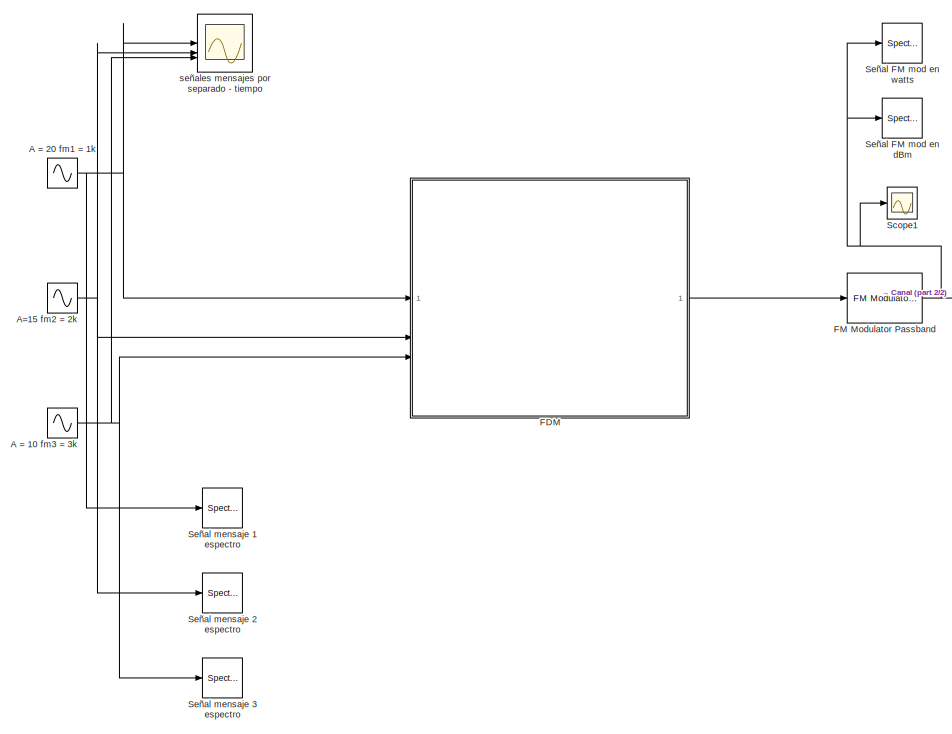
[diagram: root canvas - part 1/2, left side, full height]
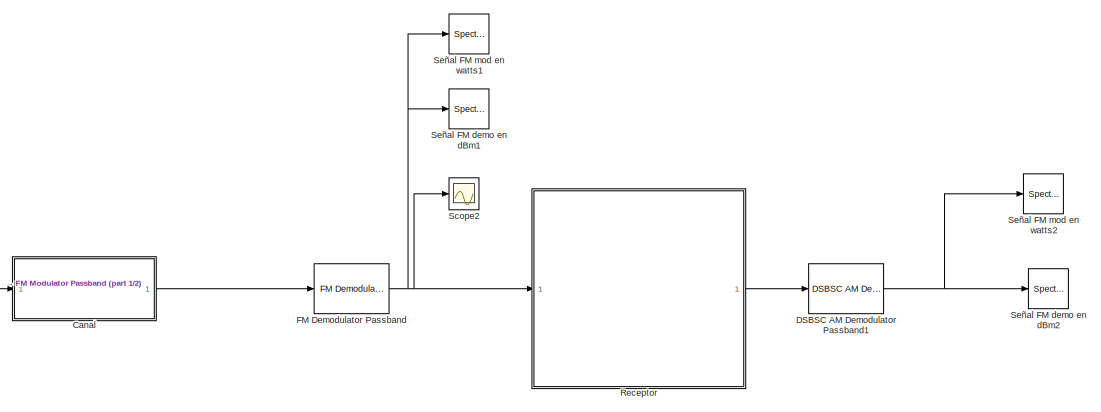
[diagram: root canvas - part 2/2, top right region]
MODEL slx_35b588966cca
KIND model
CONFIG AbsTol = auto
CONFIG EnableMultiTasking = off
CONFIG FixedStep = auto
CONFIG MaxStep = auto
CONFIG MinStep = auto
CONFIG RelTol = 1e-3
CONFIG SampleTimeConstraint = Unconstrained
CONFIG SolverName = VariableStepAuto
CONFIG StartTime = 0.0
CONFIG StopTime = 0.1
BLOCK [Sin] A = 10 fm3 = 3k
  Amplitude = test_am3
  Frequency = 2*pi*test_fm3
  Phase = pi/2
  SampleTime = test_ts
BLOCK [Sin] A = 20 fm1 = 1k
  Amplitude = test_am1
  Frequency = 2*pi*test_fm1
  SampleTime = test_ts
BLOCK [Sin] A=15 fm2 = 2k
  Amplitude = test_am2
  Frequency = 2*pi*test_fm2
  Phase = pi/2
  SampleTime = test_ts
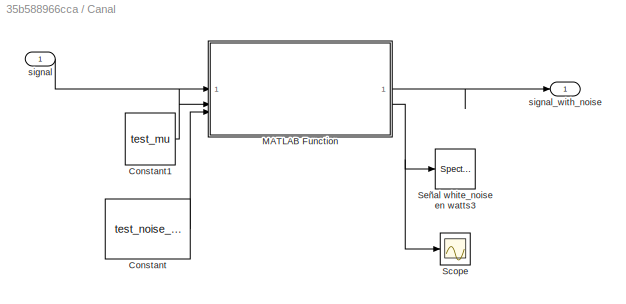
BLOCK [SubSystem] Canal
BLOCK [Constant] Canal/Constant
  SampleTime = test_ts
  Value = test_noise_factor
BLOCK [Constant] Canal/Constant1
  Value = test_mu
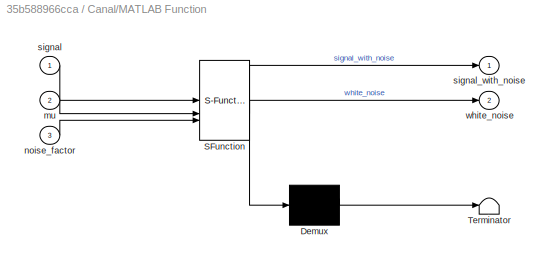
BLOCK [SubSystem] Canal/MATLAB Function
  ErrorFcn = Stateflow.Translate.translate
  PermitHierarchicalResolution = ExplicitOnly
  SFBlockType = MATLAB Function
  TreatAsAtomicUnit = on
BLOCK [Demux] Canal/MATLAB Function/ Demux 
  Outputs = 1
BLOCK [S-Function] Canal/MATLAB Function/ SFunction 
  EnableBusSupport = on
  FunctionName = sf_sfun
  PortCounts = [3 3]
  SFcnIsStateOwnerBlock = off
  SFunctionDeploymentMode = off
  Tag = Stateflow S-Function 2
BLOCK [Terminator] Canal/MATLAB Function/ Terminator 
BLOCK [Inport] Canal/MATLAB Function/mu
  Port = 2
BLOCK [Inport] Canal/MATLAB Function/noise_factor
  Port = 3
BLOCK [Inport] Canal/MATLAB Function/signal
BLOCK [Outport] Canal/MATLAB Function/signal_with_noise
BLOCK [Outport] Canal/MATLAB Function/white_noise
  Port = 2
BLOCK [Scope] Canal/Scope
  Floating = off
  NumInputPorts = 1
  ScopeSpecificationString = Simulink.scopes.TimeScopeBlockCfg('CurrentConfiguration', extmgr.ConfigurationSet(extmgr.Configuration('Core','General UI',true),extmgr.Configuration('Core','Source UI',true),extmgr.Configuration('Sources','WiredSimulink',true,'DataLoggingVariableName','ScopeData1'),extmgr.Configuration('Visuals','Time Domain',true,'SerializedDisplays',{struct('MinYLimReal','-1.00000','MaxYLimReal','1.00000','YLab...<+1413ch>
BLOCK [SpectrumAnalyzer] Canal/Señal white_noise en watts3
  GraphicalSettings = {"GraphicalSettings":{"Style":{"BackgroundColor":[0.12941176470588237,0.12941176470588237,0.12941176470588237],"AxesColor":[0.07058823529411765,0.07058823529411765,0.07058823529411765],"LabelsColor":[0.8509803921568627,0.8509803921568627,0.8509803921568627],"PreserveColors":false,"Visible":[true],"LineStyle":["-"],"LineColor":[[1,1,0.06666666666666667]],"LineWidth":[1.5],"Marker":["none"],"FontSiz...<+929ch>  <repeated x17 — deduplicated; at blocks: Señal white_noise en watts3, Señal am multiplexada en dbm, Señal am multiplexada en watts, Señal am1 espectro1, Señal am2 espectro2, Señal am3 espectro3, Señal FI - sintonizador en dBm, Señal FI - sintonizador en watts, Señal FM demo en dBm1, Señal FM demo en dBm2, Señal FM mod en dBm, Señal FM mod en watts, Señal FM mod en watts1, Señal FM mod en watts2, Señal mensaje 1 espectro, Señal mensaje 2 espectro, +1 more>
  OpenAtSimulationStart = off
  SampleRate = 44.1e3
  ScopeFrameLocation = window
  SelectedToolstripTab = spectrumAnalyzerToolstrip.spectrumTab
  ShowLegend = on
  StartFrequency = 20
  StopFrequency = 20e3
  WasSavedAsWebScope = on
  WindowPosition = [1.000000,1.000000,1920.000000,1057.000000,]
  YLimits = [-3603.44492261,-2802.67938425]
BLOCK [Inport] Canal/signal
BLOCK [Outport] Canal/signal_with_noise
BLOCK [Reference] DSBSC AM Demodulator Passband1  REF=commanapbnd3/DSBSC AM
Demodulator
Passband
  SourceBlock = commanapbnd3/DSBSC AM\nDemodulator\nPassband
  SourceType = DSBSC AM Demodulator Passband
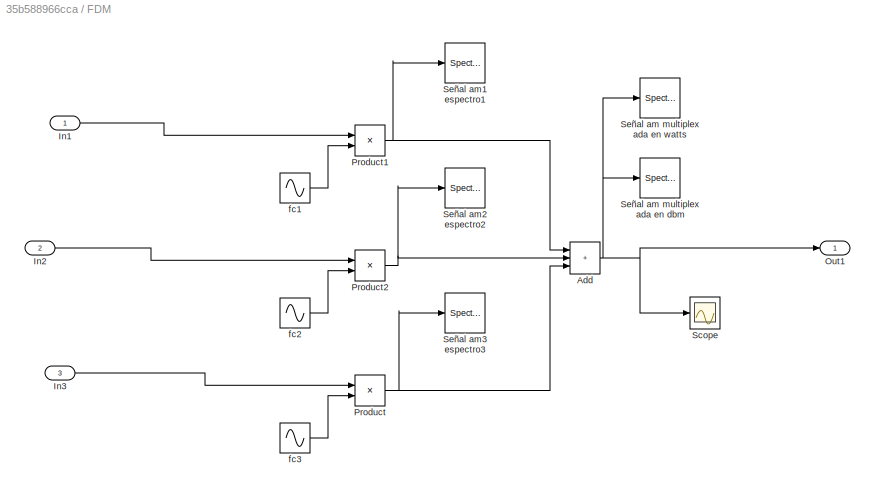
BLOCK [SubSystem] FDM
BLOCK [Sum] FDM/Add
  IconShape = rectangular
  Inputs = +++
BLOCK [Inport] FDM/In1
BLOCK [Inport] FDM/In2
  Port = 2
BLOCK [Inport] FDM/In3
  Port = 3
BLOCK [Outport] FDM/Out1
BLOCK [Product] FDM/Product
BLOCK [Product] FDM/Product1
BLOCK [Product] FDM/Product2
BLOCK [Scope] FDM/Scope
  Floating = off
  NumInputPorts = 1
  ScopeSpecificationString = Simulink.scopes.TimeScopeBlockCfg('CurrentConfiguration', extmgr.ConfigurationSet(extmgr.Configuration('Core','General UI',true),extmgr.Configuration('Core','Source UI',true),extmgr.Configuration('Sources','WiredSimulink',true,'DataLoggingVariableName','ScopeData2'),extmgr.Configuration('Visuals','Time Domain',true),extmgr.Configuration('Tools','Plot Navigation',true),extmgr.Configuration('Tools',...<+40ch>
BLOCK [SpectrumAnalyzer] FDM/Señal am multiplexada en dbm
  OpenAtSimulationStart = off
  SampleRate = 44.1e3
  ScopeFrameLocation = window
  SelectedToolstripTab = spectrumAnalyzerToolstrip.spectrumTab
  ShowLegend = on
  StartFrequency = 20
  StopFrequency = 20e3
  WasSavedAsWebScope = on
  WindowPosition = [1.000000,1.000000,1920.000000,1057.000000,]
  YLimits = [-77.52245995,57.44981241]
BLOCK [SpectrumAnalyzer] FDM/Señal am multiplexada en watts
  OpenAtSimulationStart = off
  SampleRate = 44.1e3
  ScopeFrameLocation = window
  SelectedToolstripTab = spectrumAnalyzerToolstrip.spectrumTab
  ShowLegend = on
  SpectrumUnits = Watts
  StartFrequency = 20
  StopFrequency = 20e3
  WasSavedAsWebScope = on
  WindowPosition = [1.000000,1.000000,1920.000000,1057.000000,]
  YLimits = [-3.10576456,27.95188106]
BLOCK [SpectrumAnalyzer] FDM/Señal am1 espectro1
  OpenAtSimulationStart = off
  SampleRate = 44.1e3
  ScopeFrameLocation = window
  SelectedToolstripTab = spectrumAnalyzerToolstrip.spectrumTab
  ShowLegend = on
  SpectrumUnits = Watts
  StartFrequency = 20
  StopFrequency = 20e3
  WasSavedAsWebScope = on
  WindowPosition = [1.000000,1.000000,1920.000000,1057.000000,]
  YLimits = [-3.10576466,27.9518819]
BLOCK [SpectrumAnalyzer] FDM/Señal am2 espectro2
  OpenAtSimulationStart = off
  SampleRate = 44.1e3
  ScopeFrameLocation = window
  SelectedToolstripTab = spectrumAnalyzerToolstrip.spectrumTab
  ShowLegend = on
  SpectrumUnits = Watts
  StartFrequency = 20
  StopFrequency = 20e3
  WasSavedAsWebScope = on
  WindowPosition = [1.000000,1.000000,1920.000000,1057.000000,]
  YLimits = [-1.72478242,15.52304178]
BLOCK [SpectrumAnalyzer] FDM/Señal am3 espectro3
  OpenAtSimulationStart = off
  SampleRate = 44.1e3
  ScopeFrameLocation = window
  SelectedToolstripTab = spectrumAnalyzerToolstrip.spectrumTab
  ShowLegend = on
  SpectrumUnits = Watts
  StartFrequency = 20
  StopFrequency = 20e3
  WasSavedAsWebScope = on
  WindowPosition = [1.000000,1.000000,1920.000000,1057.000000,]
  YLimits = [-0.78111251,7.03001259]
BLOCK [Sin] FDM/fc1
  Amplitude = test_ac1
  Frequency = 2*pi*test_fc1
  SampleTime = test_ts
  VectorParams1D = off
BLOCK [Sin] FDM/fc2
  Amplitude = test_ac2
  Frequency = 2*pi*test_fc2
  Phase = pi/2
  SampleTime = test_ts
BLOCK [Sin] FDM/fc3
  Amplitude = test_ac3
  Frequency = 2*pi*test_fc3
  Phase = pi/2
  SampleTime = test_ts
BLOCK [Reference] FM Demodulator Passband  REF=commanapbnd3/FM
Demodulator
Passband
  SourceBlock = commanapbnd3/FM\nDemodulator\nPassband
  SourceType = FM Demodulator Passband
BLOCK [Reference] FM Modulator Passband  REF=commanapbnd3/FM
Modulator
Passband
  SourceBlock = commanapbnd3/FM\nModulator\nPassband
  SourceType = FM Modulator Passband
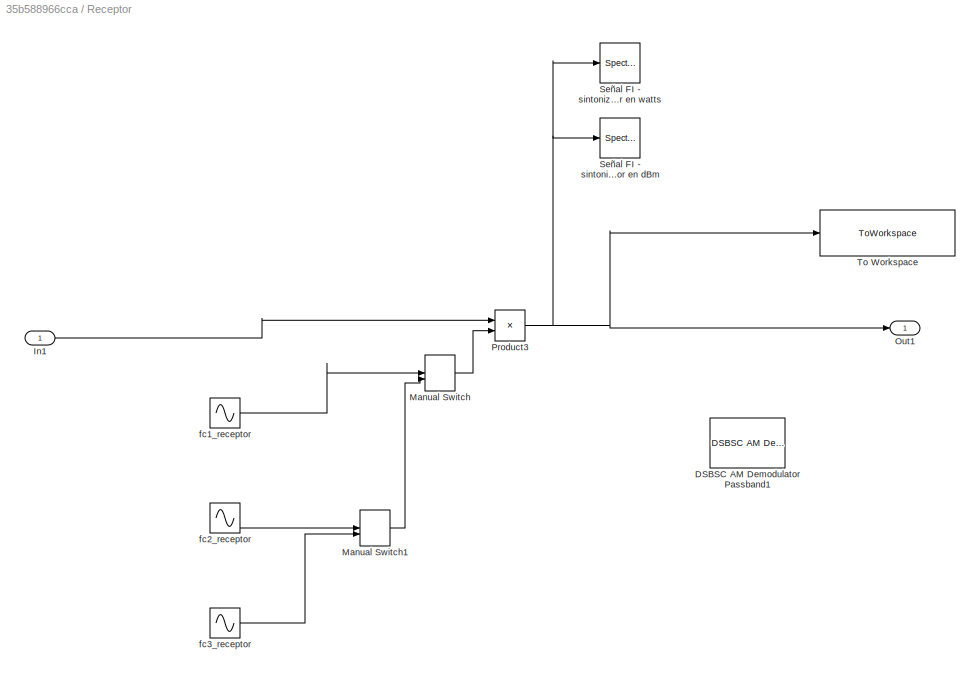
BLOCK [SubSystem] Receptor
BLOCK [Reference] Receptor/DSBSC AM Demodulator Passband1  REF=commanapbnd3/DSBSC AM
Demodulator
Passband
  Commented = on
  SourceBlock = commanapbnd3/DSBSC AM\nDemodulator\nPassband
  SourceType = DSBSC AM Demodulator Passband
BLOCK [Inport] Receptor/In1
BLOCK [ManualSwitch] Receptor/Manual Switch
BLOCK [ManualSwitch] Receptor/Manual Switch1
BLOCK [Outport] Receptor/Out1
BLOCK [Product] Receptor/Product3
BLOCK [SpectrumAnalyzer] Receptor/Señal FI - sintonizador en dBm
  OpenAtSimulationStart = off
  SampleRate = 44.1e3
  ScopeFrameLocation = window
  SelectedToolstripTab = spectrumAnalyzerToolstrip.spectrumTab
  ShowLegend = on
  StartFrequency = 20
  StopFrequency = 20e3
  WasSavedAsWebScope = on
  WindowPosition = [1.000000,1.000000,1920.000000,1057.000000,]
  YLimits = [-183.2628892,62.54011418]
BLOCK [SpectrumAnalyzer] Receptor/Señal FI - sintonizador en watts
  OpenAtSimulationStart = off
  SampleRate = 44.1e3
  ScopeFrameLocation = window
  SelectedToolstripTab = spectrumAnalyzerToolstrip.spectrumTab
  ShowLegend = on
  SpectrumUnits = Watts
  StartFrequency = 20
  StopFrequency = 20e3
  WasSavedAsWebScope = on
  WindowPosition = [1.000000,1.000000,1920.000000,1057.000000,]
  YLimits = [-104298.77298805,938688.95689244]
BLOCK [ToWorkspace] Receptor/To Workspace
  FixptAsFi = on
  MaxDataPoints = inf
  SampleTime = test_ts
  Save2DSignal = 2-D array (concatenate along first dimension)
  VariableName = salida_sintonizador
BLOCK [Sin] Receptor/fc1_receptor
  Frequency = 2*pi*test_fc1_receptor
  SampleTime = test_ts
  VectorParams1D = off
BLOCK [Sin] Receptor/fc2_receptor
  Frequency = 2*pi*test_fc2_receptor
  SampleTime = test_ts
  VectorParams1D = off
BLOCK [Sin] Receptor/fc3_receptor
  Frequency = 2*pi*test_fc3_receptor
  SampleTime = test_ts
  VectorParams1D = off
BLOCK [Scope] Scope1
  Floating = off
  NumInputPorts = 1
  ScopeSpecificationString = Simulink.scopes.TimeScopeBlockCfg('CurrentConfiguration', extmgr.ConfigurationSet(extmgr.Configuration('Core','General UI',true),extmgr.Configuration('Core','Source UI',true),extmgr.Configuration('Sources','WiredSimulink',true,'DataLoggingVariableName','ScopeData3'),extmgr.Configuration('Visuals','Time Domain',true,'SerializedDisplays',{struct('MinYLimReal','-1.25','MaxYLimReal','1.25','YLabelReal...<+1435ch>
BLOCK [Scope] Scope2
  Floating = off
  NumInputPorts = 1
  ScopeSpecificationString = Simulink.scopes.TimeScopeBlockCfg('CurrentConfiguration', extmgr.ConfigurationSet(extmgr.Configuration('Core','General UI',true),extmgr.Configuration('Core','Source UI',true),extmgr.Configuration('Sources','WiredSimulink',true,'DataLoggingVariableName','ScopeData4'),extmgr.Configuration('Visuals','Time Domain',true,'SerializedDisplays',{struct('MinYLimReal','-36.29017','MaxYLimReal','36.16756','YL...<+1461ch>
BLOCK [SpectrumAnalyzer] Señal FM demo en dBm1
  OpenAtSimulationStart = off
  SampleRate = 44.1e3
  ScopeFrameLocation = window
  SelectedToolstripTab = spectrumAnalyzerToolstrip.spectrumTab
  ShowLegend = on
  StartFrequency = 20
  StopFrequency = 20e3
  WasSavedAsWebScope = on
  WindowPosition = [1.000000,1.000000,1920.000000,1057.000000,]
  YLimits = [-84.49489701,58.22565386]
BLOCK [SpectrumAnalyzer] Señal FM demo en dBm2
  OpenAtSimulationStart = off
  SampleRate = 44.1e3
  ScopeFrameLocation = window
  SelectedToolstripTab = spectrumAnalyzerToolstrip.spectrumTab
  ShowLegend = on
  StartFrequency = 20
  StopFrequency = 20e3
  WasSavedAsWebScope = on
  WindowPosition = [1.000000,1.000000,1920.000000,1057.000000,]
  YLimits = [-268.52169579,72.08888047]
BLOCK [SpectrumAnalyzer] Señal FM mod en dBm
  OpenAtSimulationStart = off
  SampleRate = 44.1e3
  ScopeFrameLocation = window
  SelectedToolstripTab = spectrumAnalyzerToolstrip.spectrumTab
  ShowLegend = on
  StartFrequency = 20
  StopFrequency = 20e3
  WasSavedAsWebScope = on
  WindowPosition = [1.000000,1.000000,1920.000000,1057.000000,]
  YLimits = [-251.7836109,52.91268426]
BLOCK [SpectrumAnalyzer] Señal FM mod en watts
  OpenAtSimulationStart = off
  SampleRate = 44.1e3
  ScopeFrameLocation = window
  SelectedToolstripTab = spectrumAnalyzerToolstrip.spectrumTab
  ShowLegend = on
  SpectrumUnits = Watts
  StartFrequency = 20
  StopFrequency = 20e3
  WasSavedAsWebScope = on
  WindowPosition = [1.000000,1.000000,1920.000000,1057.000000,]
  YLimits = [-0.02193893,0.19745039]
BLOCK [SpectrumAnalyzer] Señal FM mod en watts1
  OpenAtSimulationStart = off
  SampleRate = 44.1e3
  ScopeFrameLocation = window
  SelectedToolstripTab = spectrumAnalyzerToolstrip.spectrumTab
  ShowLegend = on
  SpectrumUnits = Watts
  StartFrequency = 20
  StopFrequency = 20e3
  WasSavedAsWebScope = on
  WindowPosition = [1.000000,1.000000,1920.000000,1057.000000,]
  YLimits = [-3.1064895,27.95840554]
BLOCK [SpectrumAnalyzer] Señal FM mod en watts2
  OpenAtSimulationStart = off
  SampleRate = 44.1e3
  ScopeFrameLocation = window
  SelectedToolstripTab = spectrumAnalyzerToolstrip.spectrumTab
  ShowLegend = on
  SpectrumUnits = Watts
  StartFrequency = 20
  StopFrequency = 20e3
  WasSavedAsWebScope = on
  WindowPosition = [1.000000,1.000000,1920.000000,1057.000000,]
  YLimits = [-0.75147585,6.76328261]
BLOCK [SpectrumAnalyzer] Señal mensaje 1 espectro
  OpenAtSimulationStart = off
  SampleRate = 44.1e3
  ScopeFrameLocation = window
  SelectedToolstripTab = spectrumAnalyzerToolstrip.spectrumTab
  ShowLegend = on
  SpectrumUnits = Watts
  StartFrequency = 20
  StopFrequency = 20e3
  WasSavedAsWebScope = on
  WindowPosition = [1.000000,1.000000,1920.000000,1057.000000,]
  YLimits = [-12.49984028,112.49856251]
BLOCK [SpectrumAnalyzer] Señal mensaje 2 espectro
  OpenAtSimulationStart = off
  SampleRate = 44.1e3
  ScopeFrameLocation = window
  SelectedToolstripTab = spectrumAnalyzerToolstrip.spectrumTab
  ShowLegend = on
  SpectrumUnits = Watts
  StartFrequency = 20
  StopFrequency = 20e3
  WasSavedAsWebScope = on
  WindowPosition = [1.000000,1.000000,1920.000000,1057.000000,]
  YLimits = [-7.03105985,63.27953861]
BLOCK [SpectrumAnalyzer] Señal mensaje 3 espectro
  OpenAtSimulationStart = off
  SampleRate = 44.1e3
  ScopeFrameLocation = window
  SelectedToolstripTab = spectrumAnalyzerToolstrip.spectrumTab
  ShowLegend = on
  SpectrumUnits = Watts
  StartFrequency = 20
  StopFrequency = 20e3
  WasSavedAsWebScope = on
  WindowPosition = [1.000000,1.000000,1920.000000,1057.000000,]
  YLimits = [-3.12012674,28.08114066]
BLOCK [Scope] señales mensajes por separado - tiempo
  Floating = off
  NumInputPorts = 3
  ScopeSpecificationString = Simulink.scopes.TimeScopeBlockCfg('CurrentConfiguration', extmgr.ConfigurationSet(extmgr.Configuration('Core','General UI',true),extmgr.Configuration('Core','Source UI',true),extmgr.Configuration('Sources','WiredSimulink',true,'DataLoggingVariableName','ScopeData1'),extmgr.Configuration('Visuals','Time Domain',true,'SerializedDisplays',{struct('MinYLimReal','-25.00000','MaxYLimReal','25.00000','YL...<+2799ch>
NET A = 10 fm3 = 3k:1 -> FDM:3, Señal mensaje 3 espectro:1, señales mensajes por separado - tiempo:3
NET A = 20 fm1 = 1k:1 -> FDM:1, Señal mensaje 1 espectro:1, señales mensajes por separado - tiempo:1
NET A=15 fm2 = 2k:1 -> FDM:2, Señal mensaje 2 espectro:1, señales mensajes por separado - tiempo:2
LINE Canal/Constant1:1 -> Canal/MATLAB Function:2
LINE Canal/Constant:1 -> Canal/MATLAB Function:3
LINE Canal/MATLAB Function:1 -> Canal/signal_with_noise:1
NET Canal/MATLAB Function:2 -> Canal/Scope:1, Canal/Señal white_noise en watts3:1
LINE Canal/signal:1 -> Canal/MATLAB Function:1
LINE Canal:1 -> FM Demodulator Passband:1
NET DSBSC AM Demodulator Passband1:1 -> Señal FM demo en dBm2:1, Señal FM mod en watts2:1
NET FDM/Add:1 -> FDM/Out1:1, FDM/Scope:1, FDM/Señal am multiplexada en dbm:1, FDM/Señal am multiplexada en watts:1
LINE FDM/In1:1 -> FDM/Product1:1
LINE FDM/In2:1 -> FDM/Product2:1
LINE FDM/In3:1 -> FDM/Product:1
NET FDM/Product1:1 -> FDM/Add:1, FDM/Señal am1 espectro1:1
NET FDM/Product2:1 -> FDM/Add:2, FDM/Señal am2 espectro2:1
NET FDM/Product:1 -> FDM/Add:3, FDM/Señal am3 espectro3:1
LINE FDM/fc1:1 -> FDM/Product1:2
LINE FDM/fc2:1 -> FDM/Product2:2
LINE FDM/fc3:1 -> FDM/Product:2
LINE FDM:1 -> FM Modulator Passband:1
NET FM Demodulator Passband:1 -> Receptor:1, Scope2:1, Señal FM demo en dBm1:1, Señal FM mod en watts1:1
NET FM Modulator Passband:1 -> Canal:1, Scope1:1, Señal FM mod en dBm:1, Señal FM mod en watts:1
LINE Receptor/In1:1 -> Receptor/Product3:1
LINE Receptor/Manual Switch1:1 -> Receptor/Manual Switch:2
LINE Receptor/Manual Switch:1 -> Receptor/Product3:2
NET Receptor/Product3:1 -> Receptor/Out1:1, Receptor/Señal FI - sintonizador en dBm:1, Receptor/Señal FI - sintonizador en watts:1, Receptor/To Workspace:1
LINE Receptor/fc1_receptor:1 -> Receptor/Manual Switch:1
LINE Receptor/fc2_receptor:1 -> Receptor/Manual Switch1:1
LINE Receptor/fc3_receptor:1 -> Receptor/Manual Switch1:2
LINE Receptor:1 -> DSBSC AM Demodulator Passband1:1
note: NET lines group one-source signal fan-out (src -> all destinations, sorted); 1:1 wires keep LINE
CHART Canal/MATLAB Function states=1 transitions=1
  STATE_LABEL 'eML_blk_kernel()'
  STATE_LABEL 'SCRIPT:\nfunction [signal_with_noise, white_noise] = awgn_noise(signal, mu, noise_factor)\n    % WHITE_NOISE Genera ruido blanco basado en la señal de entrada.\n    %\n    % Inputs:\n    %   signal - Señal de entrada (vector).\n    %\n    % Outputs:\n    %   white_noise - Vector de ruido blanco generado.\n    \n    % Media del ruido\n    % mu = 0;\n    \n    % Desviación estándar proporcional a la señal de ent...<+201ch>'
CHART  states=0 transitions=0
